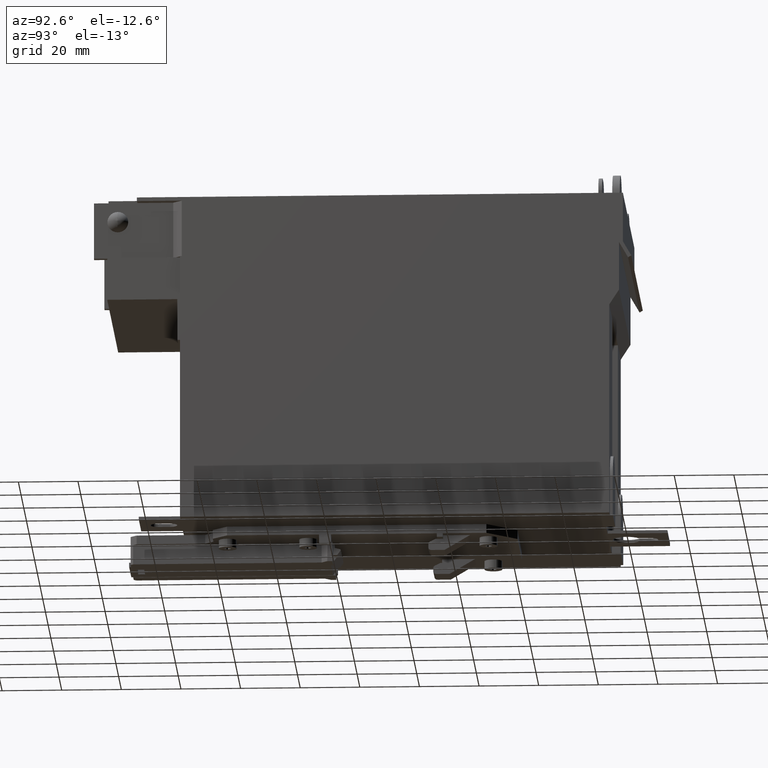
[diagram: clean part render]
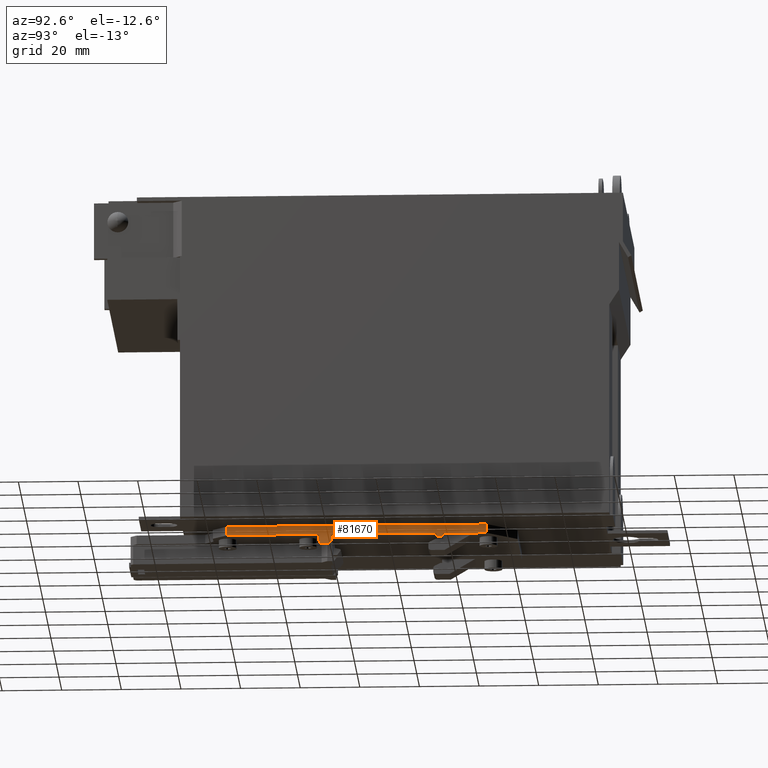
[diagram: same view with one face highlighted and labeled with its STEP entity id]
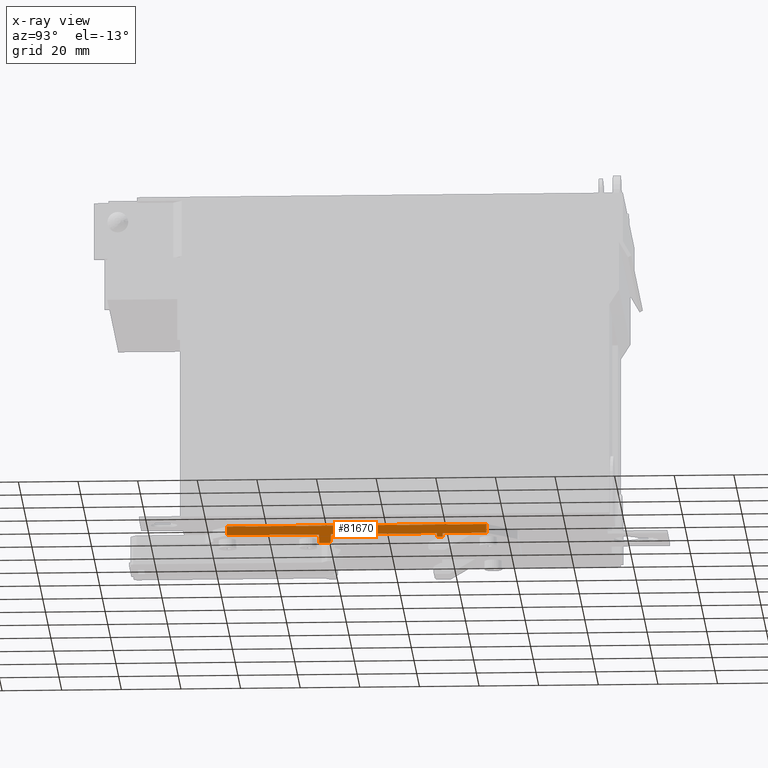
[diagram: x-ray of the same camera — body ghosted, the highlighted face saturated]
A machine part, auxiliary view. The second image highlights one B-rep face of the part: STEP entity #81670.
The next image is the same camera in x-ray: the body ghosted, the highlighted face saturated — about 0% of this face is hidden behind the body in this view.
In plain terms, the highlighted planar face has unit normal (-1, -0, 0).
Its self-contained STEP definition (entity closure, byte-faithful):
#55800=CARTESIAN_POINT('',(26.5,-1.,-101.050000000001));
#55810=VERTEX_POINT('',#55800);
#55840=CARTESIAN_POINT('',(26.5,-1.,0.));
#55850=DIRECTION('',(-1.22464679914735E-16,0.,-1.));
#55860=VECTOR('',#55850,1.);
#55870=LINE('',#55840,#55860);
#55880=CARTESIAN_POINT('',(26.5,-1.,-14.0499999999995));
#55890=VERTEX_POINT('',#55880);
#55900=EDGE_CURVE('',#55890,#55810,#55870,.T.);
#80730=CARTESIAN_POINT('',(26.5,-4.00022214599537,-111.154730389601));
#80740=DIRECTION('',(-1.,-1.84264338664371E-52,1.22464679914735E-16));
#80750=DIRECTION('',(1.22464679914735E-16,-1.50463276784806E-36,1.));
#80760=AXIS2_PLACEMENT_3D('',#80730,#80740,#80750);
#80770=PLANE('',#80760);
#80780=CARTESIAN_POINT('',(26.5,162.845112302576,-14.0499999999995));
#80790=DIRECTION('',(-5.07324235054258E-43,1.,-6.4623485340659E-27));
#80800=VECTOR('',#80790,1.);
#80810=LINE('',#80780,#80800);
#80820=CARTESIAN_POINT('',(26.5,-4.00022214599537,-14.0499999999995));
#80830=VERTEX_POINT('',#80820);
#80840=EDGE_CURVE('',#80830,#55890,#80810,.T.);
#80850=ORIENTED_EDGE('',*,*,#80840,.F.);
#80860=ORIENTED_EDGE('',*,*,#55900,.F.);
#80870=CARTESIAN_POINT('',(26.5,162.845112302576,-101.050000000001));
#80880=DIRECTION('',(7.60986352581413E-43,-1.,6.4623485340659E-27));
#80890=VECTOR('',#80880,1.);
#80900=LINE('',#80870,#80890);
#80910=CARTESIAN_POINT('',(26.5,-4.00022214599537,-101.050000000001));
#80920=VERTEX_POINT('',#80910);
#80930=EDGE_CURVE('',#55810,#80920,#80900,.T.);
#80940=ORIENTED_EDGE('',*,*,#80930,.F.);
#80950=CARTESIAN_POINT('',(26.5,-4.00022214599537,-77.6975753978313));
#80960=DIRECTION('',(1.22407328372272E-16,-1.50463276784806E-36,1.));
#80970=VECTOR('',#80960,1.);
#80980=LINE('',#80950,#80970);
#80990=CARTESIAN_POINT('',(26.5,-4.00022214599537,-86.3999999999999));
#81000=VERTEX_POINT('',#80990);
#81010=EDGE_CURVE('',#80920,#81000,#80980,.T.);
#81020=ORIENTED_EDGE('',*,*,#81010,.F.);
#81030=CARTESIAN_POINT('',(26.5,162.845112302576,-86.3999999999999));
#81040=DIRECTION('',(1.07619722060146E-42,-1.,6.4623485340659E-27));
#81050=VECTOR('',#81040,1.);
#81060=LINE('',#81030,#81050);
#81070=CARTESIAN_POINT('',(26.5,-5.2002221459953,-86.3999999999999));
#81080=VERTEX_POINT('',#81070);
#81090=EDGE_CURVE('',#81000,#81080,#81060,.T.);
#81100=ORIENTED_EDGE('',*,*,#81090,.F.);
#81110=CARTESIAN_POINT('',(26.5,-5.2002221459953,-77.6975753978313));
#81120=DIRECTION('',(1.22407328372272E-16,-1.50463276784806E-36,1.));
#81130=VECTOR('',#81120,1.);
#81140=LINE('',#81110,#81130);
#81150=CARTESIAN_POINT('',(26.5,-5.2002221459953,-84.4));
#81160=VERTEX_POINT('',#81150);
#81170=EDGE_CURVE('',#81080,#81160,#81140,.T.);
#81180=ORIENTED_EDGE('',*,*,#81170,.F.);
#81190=CARTESIAN_POINT('',(26.5,162.845112302576,-84.4));
#81200=DIRECTION('',(-1.07619722060146E-42,1.,-6.4623485340659E-27));
#81210=VECTOR('',#81200,1.);
#81220=LINE('',#81190,#81210);
#81230=CARTESIAN_POINT('',(26.5,-4.00022214599537,-84.4));
#81240=VERTEX_POINT('',#81230);
#81250=EDGE_CURVE('',#81160,#81240,#81220,.T.);
#81260=ORIENTED_EDGE('',*,*,#81250,.F.);
#81270=CARTESIAN_POINT('',(26.5,-4.00022214599537,-48.8999999999999));
#81280=VERTEX_POINT('',#81270);
#81290=EDGE_CURVE('',#81240,#81280,#80980,.T.);
#81300=ORIENTED_EDGE('',*,*,#81290,.F.);
#81310=CARTESIAN_POINT('',(26.5,162.845112302576,-48.8999999999999));
#81320=DIRECTION('',(1.07619722060146E-42,-1.,6.4623485340659E-27));
#81330=VECTOR('',#81320,1.);
#81340=LINE('',#81310,#81330);
#81350=CARTESIAN_POINT('',(26.5,-6.40022214599478,-48.8999999999999));
#81360=VERTEX_POINT('',#81350);
#81370=EDGE_CURVE('',#81280,#81360,#81340,.T.);
#81380=ORIENTED_EDGE('',*,*,#81370,.F.);
#81390=CARTESIAN_POINT('',(26.5,162.845112302576,-218.145334448482));
#81400=DIRECTION('',(-5.55111512312578E-17,0.707106781186734,
-0.707106781186362));
#81410=VECTOR('',#81400,1.);
#81420=LINE('',#81390,#81410);
#81430=CARTESIAN_POINT('',(26.5,-7.00022214599503,-48.3));
#81440=VERTEX_POINT('',#81430);
#81450=EDGE_CURVE('',#81440,#81360,#81420,.T.);
#81460=ORIENTED_EDGE('',*,*,#81450,.T.);
#81470=CARTESIAN_POINT('',(26.5,-7.00022214599503,-77.6975753978313));
#81480=DIRECTION('',(-1.22407328372272E-16,1.50463276784806E-36,-1.));
#81490=VECTOR('',#81480,1.);
#81500=LINE('',#81470,#81490);
#81510=CARTESIAN_POINT('',(26.5,-7.00022214599503,-44.9532630045247));
#81520=VERTEX_POINT('',#81510);
#81530=EDGE_CURVE('',#81520,#81440,#81500,.T.);
#81540=ORIENTED_EDGE('',*,*,#81530,.T.);
#81550=CARTESIAN_POINT('',(26.5,162.845112302576,-41.9895046597849));
#81560=DIRECTION('',(-3.46944695195361E-18,-0.99984778790108,
-0.0174470922883003));
#81570=VECTOR('',#81560,1.);
#81580=LINE('',#81550,#81570);
#81590=CARTESIAN_POINT('',(26.5,-4.00022214599537,-44.9009137594714));
#81600=VERTEX_POINT('',#81590);
#81610=EDGE_CURVE('',#81600,#81520,#81580,.T.);
#81620=ORIENTED_EDGE('',*,*,#81610,.T.);
#81630=EDGE_CURVE('',#81600,#80830,#80980,.T.);
#81640=ORIENTED_EDGE('',*,*,#81630,.F.);
#81650=EDGE_LOOP('',(#81640,#81620,#81540,#81460,#81380,#81300,#81260,
#81180,#81100,#81020,#80940,#80860,#80850));
#81660=FACE_OUTER_BOUND('',#81650,.T.);
#81670=ADVANCED_FACE('',(#81660),#80770,.F.);